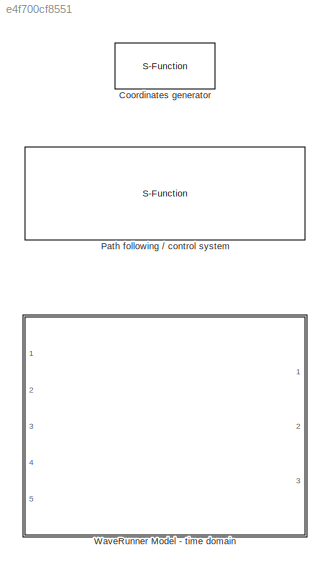
MODEL slx_e4f700cf8551
KIND library
CONFIG AbsTol = auto
CONFIG EnableMultiTasking = off
CONFIG FixedStep = auto
CONFIG MaxStep = auto
CONFIG MinStep = auto
CONFIG RelTol = 1e-3
CONFIG SampleTimeConstraint = Unconstrained
CONFIG Solver = VariableStepAuto
CONFIG SolverName = VariableStepAuto
CONFIG StartTime = 0.0
CONFIG StopTime = 10.0
BLOCK [S-Function] Coordinates generator
  EnableBusSupport = off
  FunctionName = s_coords_gen
  Parameters = steptime fname
  Ports = [0, 1]
  SFcnIsStateOwnerBlock = off
  SFunctionDeploymentMode = off
BLOCK [S-Function] Path following // control system
  EnableBusSupport = off
  FunctionName = s_path_alg
  Parameters = dt g_Kp g_Tf g_Kd g_Ki g_max g_min n_Kp n_Tf n_Kd n_Ki n_max n_min
  Ports = [4, 3]
  SFcnIsStateOwnerBlock = off
  SFunctionDeploymentMode = off
  SFunctionModules = 'path_alg'
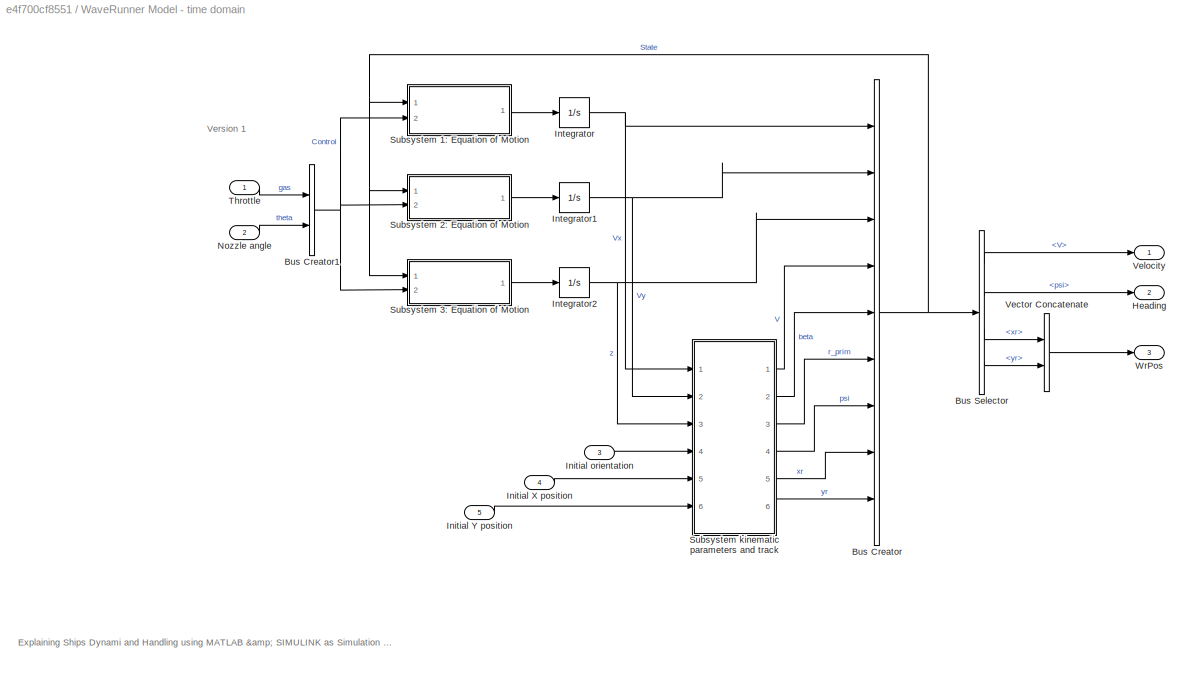
BLOCK [SubSystem] WaveRunner Model - time domain
  Ports = [5, 3]
  RequestExecContextInheritance = off
BLOCK [BusCreator] WaveRunner Model - time domain/Bus Creator
  DisplayOption = bar
  InheritFromInputs = on
  Inputs = 9
  Ports = [9, 1]
BLOCK [BusCreator] WaveRunner Model - time domain/Bus Creator1
  DisplayOption = bar
  InheritFromInputs = on
  Inputs = 2
  Ports = [2, 1]
BLOCK [BusSelector] WaveRunner Model - time domain/Bus Selector
  OutputAsBus = off
  OutputSignals = V,psi,xr,yr
  Ports = [1, 4]
BLOCK [Outport] WaveRunner Model - time domain/Heading
  IconDisplay = Port number
  Port = 2
BLOCK [Inport] WaveRunner Model - time domain/Initial X position
  IconDisplay = Port number
  Port = 4
BLOCK [Inport] WaveRunner Model - time domain/Initial Y position
  IconDisplay = Port number
  Port = 5
BLOCK [Inport] WaveRunner Model - time domain/Initial orientation
  IconDisplay = Port number
  Port = 3
BLOCK [Integrator] WaveRunner Model - time domain/Integrator
  Ports = [1, 1]
BLOCK [Integrator] WaveRunner Model - time domain/Integrator1
  Ports = [1, 1]
BLOCK [Integrator] WaveRunner Model - time domain/Integrator2
  Ports = [1, 1]
BLOCK [Inport] WaveRunner Model - time domain/Nozzle angle
  IconDisplay = Port number
  Port = 2
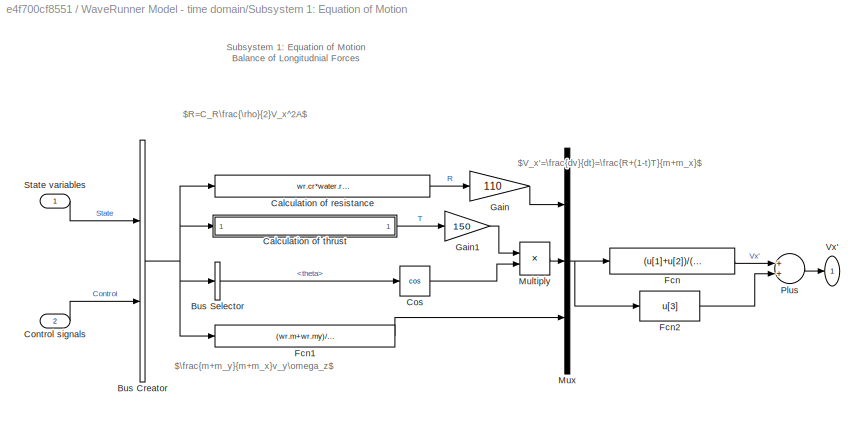
BLOCK [SubSystem] WaveRunner Model - time domain/Subsystem 1: Equation of Motion
  Ports = [2, 1]
  RequestExecContextInheritance = off
BLOCK [BusCreator] WaveRunner Model - time domain/Subsystem 1: Equation of Motion/Bus Creator
  DisplayOption = bar
  InheritFromInputs = on
  Inputs = 2
  OutDataTypeStr = Bus: slBus1
  Ports = [2, 1]
BLOCK [BusSelector] WaveRunner Model - time domain/Subsystem 1: Equation of Motion/Bus Selector
  OutputAsBus = off
  OutputSignals = Control.theta
  Ports = [1, 1]
BLOCK [Fcn] WaveRunner Model - time domain/Subsystem 1: Equation of Motion/Calculation of resistance
  Expr = wr.cr*water.rho/2*(wr.Al/(1+u[1]))*u[1]^2
BLOCK [ModelReference] WaveRunner Model - time domain/Subsystem 1: Equation of Motion/Calculation of thrust
  ModelNameDialog = calculation_of_thrust
  ModelReferenceVersion = 1.17
  Ports = [1, 1]
BLOCK [Inport] WaveRunner Model - time domain/Subsystem 1: Equation of Motion/Control signals
  IconDisplay = Port number
  Port = 2
BLOCK [Trigonometry] WaveRunner Model - time domain/Subsystem 1: Equation of Motion/Cos
  Operator = cos
  Ports = [1, 1]
BLOCK [Fcn] WaveRunner Model - time domain/Subsystem 1: Equation of Motion/Fcn
  Expr = (u[1]+u[2])/(wr.m+wr.mx)
BLOCK [Fcn] WaveRunner Model - time domain/Subsystem 1: Equation of Motion/Fcn1
  Expr = (wr.m+wr.my)/(wr.m+wr.mx)*u[2]*u[3]
BLOCK [Fcn] WaveRunner Model - time domain/Subsystem 1: Equation of Motion/Fcn2
  Expr = u[3]
BLOCK [Gain] WaveRunner Model - time domain/Subsystem 1: Equation of Motion/Gain
  Gain = 110
  OutDataTypeStr = Inherit: Inherit via internal rule
  ParamDataTypeStr = Inherit: Inherit via internal rule
  SaturateOnIntegerOverflow = off
BLOCK [Gain] WaveRunner Model - time domain/Subsystem 1: Equation of Motion/Gain1
  Gain = 150
  OutDataTypeStr = Inherit: Inherit via internal rule
  ParamDataTypeStr = Inherit: Inherit via internal rule
  SaturateOnIntegerOverflow = off
BLOCK [Product] WaveRunner Model - time domain/Subsystem 1: Equation of Motion/Multiply
  InputSameDT = off
  OutDataTypeStr = Inherit: Inherit via internal rule
  Ports = [2, 1]
  RndMeth = Floor
  SaturateOnIntegerOverflow = off
BLOCK [Mux] WaveRunner Model - time domain/Subsystem 1: Equation of Motion/Mux
  DisplayOption = bar
  Inputs = 3
  Ports = [3, 1]
BLOCK [Sum] WaveRunner Model - time domain/Subsystem 1: Equation of Motion/Plus
  InputSameDT = off
  OutDataTypeStr = Inherit: Inherit via internal rule
  Ports = [2, 1]
  SaturateOnIntegerOverflow = off
BLOCK [Inport] WaveRunner Model - time domain/Subsystem 1: Equation of Motion/State variables
  IconDisplay = Port number
BLOCK [Outport] WaveRunner Model - time domain/Subsystem 1: Equation of Motion/Vx'
  IconDisplay = Port number
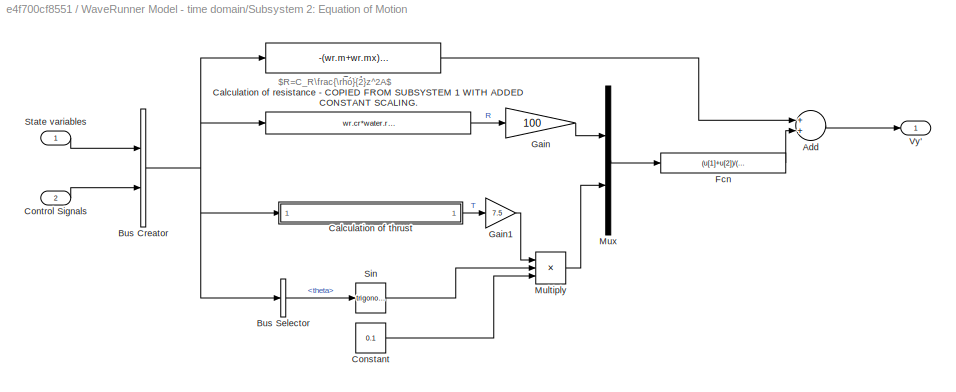
BLOCK [SubSystem] WaveRunner Model - time domain/Subsystem 2: Equation of Motion
  Ports = [2, 1]
  RequestExecContextInheritance = off
BLOCK [Sum] WaveRunner Model - time domain/Subsystem 2: Equation of Motion/Add
  InputSameDT = off
  OutDataTypeStr = Inherit: Inherit via internal rule
  Ports = [2, 1]
  SaturateOnIntegerOverflow = off
BLOCK [BusCreator] WaveRunner Model - time domain/Subsystem 2: Equation of Motion/Bus Creator
  DisplayOption = bar
  InheritFromInputs = on
  Inputs = 2
  Ports = [2, 1]
BLOCK [BusSelector] WaveRunner Model - time domain/Subsystem 2: Equation of Motion/Bus Selector
  OutputAsBus = off
  OutputSignals = Control.theta
  Ports = [1, 1]
BLOCK [Fcn] WaveRunner Model - time domain/Subsystem 2: Equation of Motion/Calculation of resistance - COPIED FROM SUBSYSTEM 1 WITH ADDED CONSTANT SCALING.
  Expr = wr.cr*water.rho/2*wr.Al*u[2]
BLOCK [ModelReference] WaveRunner Model - time domain/Subsystem 2: Equation of Motion/Calculation of thrust
  ModelNameDialog = calculation_of_thrust
  ModelReferenceVersion = 1.17
  Ports = [1, 1]
BLOCK [Constant] WaveRunner Model - time domain/Subsystem 2: Equation of Motion/Constant
  Value = 0.1
BLOCK [Inport] WaveRunner Model - time domain/Subsystem 2: Equation of Motion/Control Signals
  IconDisplay = Port number
  Port = 2
BLOCK [Fcn] WaveRunner Model - time domain/Subsystem 2: Equation of Motion/Fcn
  Expr = (u[1]+u[2])/(wr.m+wr.my)
BLOCK [Fcn] WaveRunner Model - time domain/Subsystem 2: Equation of Motion/Fcn1
  Expr = -(wr.m+wr.mx)/(wr.m+wr.my)*u[1]*u[3]
BLOCK [Gain] WaveRunner Model - time domain/Subsystem 2: Equation of Motion/Gain
  Gain = 100
  OutDataTypeStr = Inherit: Inherit via internal rule
  ParamDataTypeStr = Inherit: Inherit via internal rule
  SaturateOnIntegerOverflow = off
BLOCK [Gain] WaveRunner Model - time domain/Subsystem 2: Equation of Motion/Gain1
  Gain = 7.5
  OutDataTypeStr = Inherit: Inherit via internal rule
  ParamDataTypeStr = Inherit: Inherit via internal rule
  SaturateOnIntegerOverflow = off
BLOCK [Product] WaveRunner Model - time domain/Subsystem 2: Equation of Motion/Multiply
  InputSameDT = off
  Inputs = 3
  OutDataTypeStr = Inherit: Inherit via internal rule
  Ports = [3, 1]
  RndMeth = Floor
  SaturateOnIntegerOverflow = off
BLOCK [Mux] WaveRunner Model - time domain/Subsystem 2: Equation of Motion/Mux
  DisplayOption = bar
  Inputs = 2
  Ports = [2, 1]
BLOCK [Trigonometry] WaveRunner Model - time domain/Subsystem 2: Equation of Motion/Sin
  Ports = [1, 1]
BLOCK [Inport] WaveRunner Model - time domain/Subsystem 2: Equation of Motion/State variables
  IconDisplay = Port number
BLOCK [Outport] WaveRunner Model - time domain/Subsystem 2: Equation of Motion/Vy'
  IconDisplay = Port number
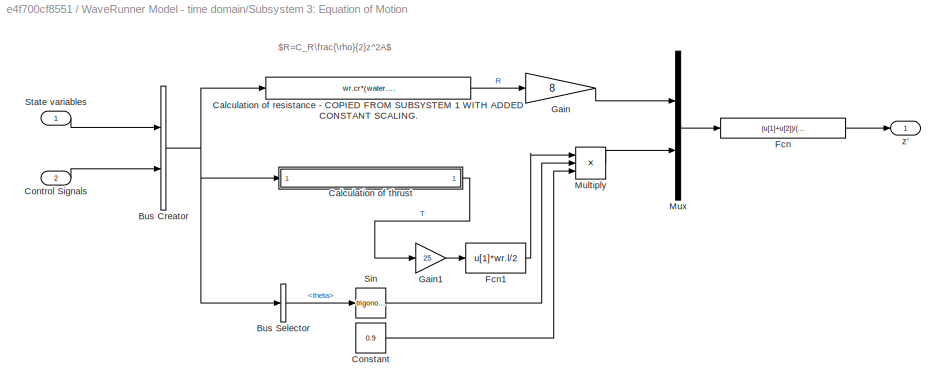
BLOCK [SubSystem] WaveRunner Model - time domain/Subsystem 3: Equation of Motion
  Ports = [2, 1]
  RequestExecContextInheritance = off
BLOCK [BusCreator] WaveRunner Model - time domain/Subsystem 3: Equation of Motion/Bus Creator
  DisplayOption = bar
  InheritFromInputs = on
  Inputs = 2
  Ports = [2, 1]
BLOCK [BusSelector] WaveRunner Model - time domain/Subsystem 3: Equation of Motion/Bus Selector
  OutputAsBus = off
  OutputSignals = Control.theta
  Ports = [1, 1]
BLOCK [Fcn] WaveRunner Model - time domain/Subsystem 3: Equation of Motion/Calculation of resistance - COPIED FROM SUBSYSTEM 1 WITH ADDED CONSTANT SCALING.
  Expr = wr.cr*(water.rho/2)*wr.Al*u[3]
BLOCK [ModelReference] WaveRunner Model - time domain/Subsystem 3: Equation of Motion/Calculation of thrust
  ModelNameDialog = calculation_of_thrust
  ModelReferenceVersion = 1.17
  Ports = [1, 1]
BLOCK [Constant] WaveRunner Model - time domain/Subsystem 3: Equation of Motion/Constant
  Value = 0.9
BLOCK [Inport] WaveRunner Model - time domain/Subsystem 3: Equation of Motion/Control Signals
  IconDisplay = Port number
  Port = 2
BLOCK [Fcn] WaveRunner Model - time domain/Subsystem 3: Equation of Motion/Fcn
  Expr = (u[1]+u[2])/(wr.I+wr.Iz)
BLOCK [Fcn] WaveRunner Model - time domain/Subsystem 3: Equation of Motion/Fcn1
  Expr = u[1]*wr.l/2
BLOCK [Gain] WaveRunner Model - time domain/Subsystem 3: Equation of Motion/Gain
  Gain = 8
  OutDataTypeStr = Inherit: Inherit via internal rule
  ParamDataTypeStr = Inherit: Inherit via internal rule
  SaturateOnIntegerOverflow = off
BLOCK [Gain] WaveRunner Model - time domain/Subsystem 3: Equation of Motion/Gain1
  Gain = 25
  OutDataTypeStr = Inherit: Inherit via internal rule
  ParamDataTypeStr = Inherit: Inherit via internal rule
  SaturateOnIntegerOverflow = off
BLOCK [Product] WaveRunner Model - time domain/Subsystem 3: Equation of Motion/Multiply
  InputSameDT = off
  Inputs = 3
  OutDataTypeStr = Inherit: Inherit via internal rule
  Ports = [3, 1]
  RndMeth = Floor
  SaturateOnIntegerOverflow = off
BLOCK [Mux] WaveRunner Model - time domain/Subsystem 3: Equation of Motion/Mux
  DisplayOption = bar
  Inputs = 2
  Ports = [2, 1]
BLOCK [Trigonometry] WaveRunner Model - time domain/Subsystem 3: Equation of Motion/Sin
  Ports = [1, 1]
BLOCK [Inport] WaveRunner Model - time domain/Subsystem 3: Equation of Motion/State variables
  IconDisplay = Port number
BLOCK [Outport] WaveRunner Model - time domain/Subsystem 3: Equation of Motion/z'
  IconDisplay = Port number
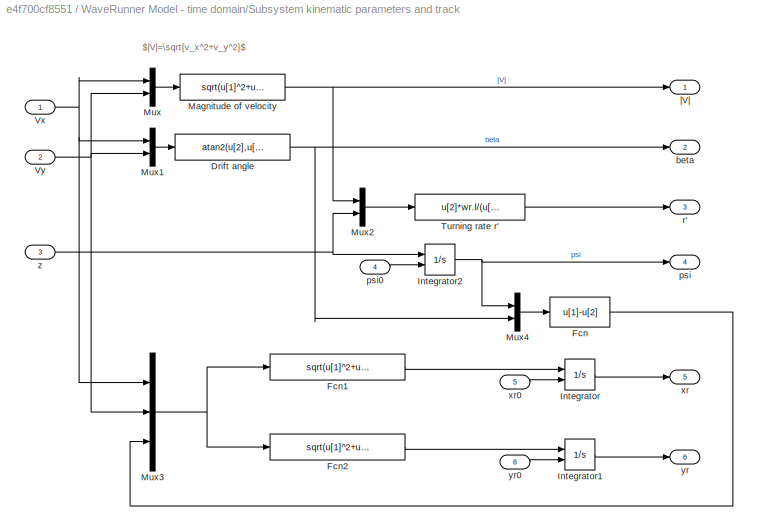
BLOCK [SubSystem] WaveRunner Model - time domain/Subsystem kinematic parameters and track
  Ports = [6, 6]
  RequestExecContextInheritance = off
BLOCK [Fcn] WaveRunner Model - time domain/Subsystem kinematic parameters and track/Drift angle
  Expr = atan2(u[2],u[1])*pi/180
BLOCK [Fcn] WaveRunner Model - time domain/Subsystem kinematic parameters and track/Fcn
  Expr = u[1]-u[2]
BLOCK [Fcn] WaveRunner Model - time domain/Subsystem kinematic parameters and track/Fcn1
  Expr = sqrt(u[1]^2+u[2]^2)*cos(u[3])
BLOCK [Fcn] WaveRunner Model - time domain/Subsystem kinematic parameters and track/Fcn2
  Expr = sqrt(u[1]^2+u[2]^2)*sin(u[3])
BLOCK [Integrator] WaveRunner Model - time domain/Subsystem kinematic parameters and track/Integrator
  InitialConditionSource = external
  Ports = [2, 1]
BLOCK [Integrator] WaveRunner Model - time domain/Subsystem kinematic parameters and track/Integrator1
  InitialConditionSource = external
  Ports = [2, 1]
BLOCK [Integrator] WaveRunner Model - time domain/Subsystem kinematic parameters and track/Integrator2
  InitialConditionSource = external
  Ports = [2, 1]
BLOCK [Fcn] WaveRunner Model - time domain/Subsystem kinematic parameters and track/Magnitude of velocity
  Expr = sqrt(u[1]^2+u[2]^2)
BLOCK [Mux] WaveRunner Model - time domain/Subsystem kinematic parameters and track/Mux
  DisplayOption = bar
  Inputs = 2
  Ports = [2, 1]
BLOCK [Mux] WaveRunner Model - time domain/Subsystem kinematic parameters and track/Mux1
  DisplayOption = bar
  Inputs = 2
  Ports = [2, 1]
BLOCK [Mux] WaveRunner Model - time domain/Subsystem kinematic parameters and track/Mux2
  DisplayOption = bar
  Inputs = 2
  Ports = [2, 1]
BLOCK [Mux] WaveRunner Model - time domain/Subsystem kinematic parameters and track/Mux3
  DisplayOption = bar
  Inputs = 3
  Ports = [3, 1]
BLOCK [Mux] WaveRunner Model - time domain/Subsystem kinematic parameters and track/Mux4
  DisplayOption = bar
  Inputs = 2
  Ports = [2, 1]
BLOCK [Fcn] WaveRunner Model - time domain/Subsystem kinematic parameters and track/Turning rate r'
  Expr = u[2]*wr.l/(u[1]+0.01)
BLOCK [Inport] WaveRunner Model - time domain/Subsystem kinematic parameters and track/Vx
  IconDisplay = Port number
BLOCK [Inport] WaveRunner Model - time domain/Subsystem kinematic parameters and track/Vy
  IconDisplay = Port number
  Port = 2
BLOCK [Outport] WaveRunner Model - time domain/Subsystem kinematic parameters and track/beta
  IconDisplay = Port number
  Port = 2
BLOCK [Outport] WaveRunner Model - time domain/Subsystem kinematic parameters and track/psi
  IconDisplay = Port number
  Port = 4
BLOCK [Inport] WaveRunner Model - time domain/Subsystem kinematic parameters and track/psi0
  IconDisplay = Port number
  Port = 4
BLOCK [Outport] WaveRunner Model - time domain/Subsystem kinematic parameters and track/r'
  IconDisplay = Port number
  Port = 3
BLOCK [Outport] WaveRunner Model - time domain/Subsystem kinematic parameters and track/xr
  IconDisplay = Port number
  Port = 5
BLOCK [Inport] WaveRunner Model - time domain/Subsystem kinematic parameters and track/xr0
  IconDisplay = Port number
  Port = 5
BLOCK [Outport] WaveRunner Model - time domain/Subsystem kinematic parameters and track/yr
  IconDisplay = Port number
  Port = 6
BLOCK [Inport] WaveRunner Model - time domain/Subsystem kinematic parameters and track/yr0
  IconDisplay = Port number
  Port = 6
BLOCK [Inport] WaveRunner Model - time domain/Subsystem kinematic parameters and track/z
  IconDisplay = Port number
  Port = 3
BLOCK [Outport] WaveRunner Model - time domain/Subsystem kinematic parameters and track/|V|
  IconDisplay = Port number
BLOCK [Inport] WaveRunner Model - time domain/Throttle
  IconDisplay = Port number
BLOCK [Concatenate] WaveRunner Model - time domain/Vector Concatenate
  Ports = [2, 1]
BLOCK [Outport] WaveRunner Model - time domain/Velocity
  IconDisplay = Port number
BLOCK [Outport] WaveRunner Model - time domain/WrPos
  IconDisplay = Port number
  Port = 3
ANNOTATION WaveRunner Model - time domain: Explaining Ships Dynami and Handling using MATLAB & SIMULINK as Simulation Tool in Teaching Maritime Students
ANNOTATION WaveRunner Model - time domain: Version 1
ANNOTATION WaveRunner Model - time domain/Subsystem 1: Equation of Motion: Subsystem 1: Equation of Motion Balance of Longitudnial Forces
ANNOTATION WaveRunner Model - time domain/Subsystem 1: Equation of Motion: $R=C_R\frac{\rho}{2}V_x^2A$
ANNOTATION WaveRunner Model - time domain/Subsystem 1: Equation of Motion: $V_x'=\frac{dv}{dt}=\frac{R+(1-t)T}{m+m_x}$
ANNOTATION WaveRunner Model - time domain/Subsystem 1: Equation of Motion: $\frac{m+m_y}{m+m_x}v_y\omega_z$
ANNOTATION WaveRunner Model - time domain/Subsystem 2: Equation of Motion: $R=C_R\frac{\rho}{2}z^2A$
ANNOTATION WaveRunner Model - time domain/Subsystem 3: Equation of Motion: $R=C_R\frac{\rho}{2}z^2A$
ANNOTATION WaveRunner Model - time domain/Subsystem kinematic parameters and track: $|V|=\sqrt{v_x^2+v_y^2}$
NET WaveRunner Model - time domain/Bus Creator1:1 -> WaveRunner Model - time domain/Subsystem 1: Equation of Motion:2, WaveRunner Model - time domain/Subsystem 2: Equation of Motion:2, WaveRunner Model - time domain/Subsystem 3: Equation of Motion:2
NET WaveRunner Model - time domain/Bus Creator:1 -> WaveRunner Model - time domain/Bus Selector:1, WaveRunner Model - time domain/Subsystem 1: Equation of Motion:1, WaveRunner Model - time domain/Subsystem 2: Equation of Motion:1, WaveRunner Model - time domain/Subsystem 3: Equation of Motion:1
LINE WaveRunner Model - time domain/Bus Selector:1 -> WaveRunner Model - time domain/Velocity:1
LINE WaveRunner Model - time domain/Bus Selector:2 -> WaveRunner Model - time domain/Heading:1
LINE WaveRunner Model - time domain/Bus Selector:3 -> WaveRunner Model - time domain/Vector Concatenate:1
LINE WaveRunner Model - time domain/Bus Selector:4 -> WaveRunner Model - time domain/Vector Concatenate:2
LINE WaveRunner Model - time domain/Initial X position:1 -> WaveRunner Model - time domain/Subsystem kinematic parameters and track:5
LINE WaveRunner Model - time domain/Initial Y position:1 -> WaveRunner Model - time domain/Subsystem kinematic parameters and track:6
LINE WaveRunner Model - time domain/Initial orientation:1 -> WaveRunner Model - time domain/Subsystem kinematic parameters and track:4
NET WaveRunner Model - time domain/Integrator1:1 -> WaveRunner Model - time domain/Bus Creator:2, WaveRunner Model - time domain/Subsystem kinematic parameters and track:2
NET WaveRunner Model - time domain/Integrator2:1 -> WaveRunner Model - time domain/Bus Creator:3, WaveRunner Model - time domain/Subsystem kinematic parameters and track:3
NET WaveRunner Model - time domain/Integrator:1 -> WaveRunner Model - time domain/Bus Creator:1, WaveRunner Model - time domain/Subsystem kinematic parameters and track:1
LINE WaveRunner Model - time domain/Nozzle angle:1 -> WaveRunner Model - time domain/Bus Creator1:2
NET WaveRunner Model - time domain/Subsystem 1: Equation of Motion/Bus Creator:1 -> WaveRunner Model - time domain/Subsystem 1: Equation of Motion/Bus Selector:1, WaveRunner Model - time domain/Subsystem 1: Equation of Motion/Calculation of resistance:1, WaveRunner Model - time domain/Subsystem 1: Equation of Motion/Calculation of thrust:1, WaveRunner Model - time domain/Subsystem 1: Equation of Motion/Fcn1:1
LINE WaveRunner Model - time domain/Subsystem 1: Equation of Motion/Bus Selector:1 -> WaveRunner Model - time domain/Subsystem 1: Equation of Motion/Cos:1
LINE WaveRunner Model - time domain/Subsystem 1: Equation of Motion/Calculation of resistance:1 -> WaveRunner Model - time domain/Subsystem 1: Equation of Motion/Gain:1
LINE WaveRunner Model - time domain/Subsystem 1: Equation of Motion/Calculation of thrust:1 -> WaveRunner Model - time domain/Subsystem 1: Equation of Motion/Gain1:1
LINE WaveRunner Model - time domain/Subsystem 1: Equation of Motion/Control signals:1 -> WaveRunner Model - time domain/Subsystem 1: Equation of Motion/Bus Creator:2
LINE WaveRunner Model - time domain/Subsystem 1: Equation of Motion/Cos:1 -> WaveRunner Model - time domain/Subsystem 1: Equation of Motion/Multiply:2
LINE WaveRunner Model - time domain/Subsystem 1: Equation of Motion/Fcn1:1 -> WaveRunner Model - time domain/Subsystem 1: Equation of Motion/Mux:3
LINE WaveRunner Model - time domain/Subsystem 1: Equation of Motion/Fcn2:1 -> WaveRunner Model - time domain/Subsystem 1: Equation of Motion/Plus:2
LINE WaveRunner Model - time domain/Subsystem 1: Equation of Motion/Fcn:1 -> WaveRunner Model - time domain/Subsystem 1: Equation of Motion/Plus:1
LINE WaveRunner Model - time domain/Subsystem 1: Equation of Motion/Gain1:1 -> WaveRunner Model - time domain/Subsystem 1: Equation of Motion/Multiply:1
LINE WaveRunner Model - time domain/Subsystem 1: Equation of Motion/Gain:1 -> WaveRunner Model - time domain/Subsystem 1: Equation of Motion/Mux:1
LINE WaveRunner Model - time domain/Subsystem 1: Equation of Motion/Multiply:1 -> WaveRunner Model - time domain/Subsystem 1: Equation of Motion/Mux:2
NET WaveRunner Model - time domain/Subsystem 1: Equation of Motion/Mux:1 -> WaveRunner Model - time domain/Subsystem 1: Equation of Motion/Fcn2:1, WaveRunner Model - time domain/Subsystem 1: Equation of Motion/Fcn:1
LINE WaveRunner Model - time domain/Subsystem 1: Equation of Motion/Plus:1 -> WaveRunner Model - time domain/Subsystem 1: Equation of Motion/Vx':1
LINE WaveRunner Model - time domain/Subsystem 1: Equation of Motion/State variables:1 -> WaveRunner Model - time domain/Subsystem 1: Equation of Motion/Bus Creator:1
LINE WaveRunner Model - time domain/Subsystem 1: Equation of Motion:1 -> WaveRunner Model - time domain/Integrator:1
LINE WaveRunner Model - time domain/Subsystem 2: Equation of Motion/Add:1 -> WaveRunner Model - time domain/Subsystem 2: Equation of Motion/Vy':1
NET WaveRunner Model - time domain/Subsystem 2: Equation of Motion/Bus Creator:1 -> WaveRunner Model - time domain/Subsystem 2: Equation of Motion/Bus Selector:1, WaveRunner Model - time domain/Subsystem 2: Equation of Motion/Calculation of resistance - COPIED FROM SUBSYSTEM 1 WITH ADDED CONSTANT SCALING.:1, WaveRunner Model - time domain/Subsystem 2: Equation of Motion/Calculation of thrust:1, WaveRunner Model - time domain/Subsystem 2: Equation of Motion/Fcn1:1
LINE WaveRunner Model - time domain/Subsystem 2: Equation of Motion/Bus Selector:1 -> WaveRunner Model - time domain/Subsystem 2: Equation of Motion/Sin:1
LINE WaveRunner Model - time domain/Subsystem 2: Equation of Motion/Calculation of resistance - COPIED FROM SUBSYSTEM 1 WITH ADDED CONSTANT SCALING.:1 -> WaveRunner Model - time domain/Subsystem 2: Equation of Motion/Gain:1
LINE WaveRunner Model - time domain/Subsystem 2: Equation of Motion/Calculation of thrust:1 -> WaveRunner Model - time domain/Subsystem 2: Equation of Motion/Gain1:1
LINE WaveRunner Model - time domain/Subsystem 2: Equation of Motion/Constant:1 -> WaveRunner Model - time domain/Subsystem 2: Equation of Motion/Multiply:3
LINE WaveRunner Model - time domain/Subsystem 2: Equation of Motion/Control Signals:1 -> WaveRunner Model - time domain/Subsystem 2: Equation of Motion/Bus Creator:2
LINE WaveRunner Model - time domain/Subsystem 2: Equation of Motion/Fcn1:1 -> WaveRunner Model - time domain/Subsystem 2: Equation of Motion/Add:1
LINE WaveRunner Model - time domain/Subsystem 2: Equation of Motion/Fcn:1 -> WaveRunner Model - time domain/Subsystem 2: Equation of Motion/Add:2
LINE WaveRunner Model - time domain/Subsystem 2: Equation of Motion/Gain1:1 -> WaveRunner Model - time domain/Subsystem 2: Equation of Motion/Multiply:1
LINE WaveRunner Model - time domain/Subsystem 2: Equation of Motion/Gain:1 -> WaveRunner Model - time domain/Subsystem 2: Equation of Motion/Mux:1
LINE WaveRunner Model - time domain/Subsystem 2: Equation of Motion/Multiply:1 -> WaveRunner Model - time domain/Subsystem 2: Equation of Motion/Mux:2
LINE WaveRunner Model - time domain/Subsystem 2: Equation of Motion/Mux:1 -> WaveRunner Model - time domain/Subsystem 2: Equation of Motion/Fcn:1
LINE WaveRunner Model - time domain/Subsystem 2: Equation of Motion/Sin:1 -> WaveRunner Model - time domain/Subsystem 2: Equation of Motion/Multiply:2
LINE WaveRunner Model - time domain/Subsystem 2: Equation of Motion/State variables:1 -> WaveRunner Model - time domain/Subsystem 2: Equation of Motion/Bus Creator:1
LINE WaveRunner Model - time domain/Subsystem 2: Equation of Motion:1 -> WaveRunner Model - time domain/Integrator1:1
NET WaveRunner Model - time domain/Subsystem 3: Equation of Motion/Bus Creator:1 -> WaveRunner Model - time domain/Subsystem 3: Equation of Motion/Bus Selector:1, WaveRunner Model - time domain/Subsystem 3: Equation of Motion/Calculation of resistance - COPIED FROM SUBSYSTEM 1 WITH ADDED CONSTANT SCALING.:1, WaveRunner Model - time domain/Subsystem 3: Equation of Motion/Calculation of thrust:1
LINE WaveRunner Model - time domain/Subsystem 3: Equation of Motion/Bus Selector:1 -> WaveRunner Model - time domain/Subsystem 3: Equation of Motion/Sin:1
LINE WaveRunner Model - time domain/Subsystem 3: Equation of Motion/Calculation of resistance - COPIED FROM SUBSYSTEM 1 WITH ADDED CONSTANT SCALING.:1 -> WaveRunner Model - time domain/Subsystem 3: Equation of Motion/Gain:1
LINE WaveRunner Model - time domain/Subsystem 3: Equation of Motion/Calculation of thrust:1 -> WaveRunner Model - time domain/Subsystem 3: Equation of Motion/Gain1:1
LINE WaveRunner Model - time domain/Subsystem 3: Equation of Motion/Constant:1 -> WaveRunner Model - time domain/Subsystem 3: Equation of Motion/Multiply:3
LINE WaveRunner Model - time domain/Subsystem 3: Equation of Motion/Control Signals:1 -> WaveRunner Model - time domain/Subsystem 3: Equation of Motion/Bus Creator:2
LINE WaveRunner Model - time domain/Subsystem 3: Equation of Motion/Fcn1:1 -> WaveRunner Model - time domain/Subsystem 3: Equation of Motion/Multiply:1
LINE WaveRunner Model - time domain/Subsystem 3: Equation of Motion/Fcn:1 -> WaveRunner Model - time domain/Subsystem 3: Equation of Motion/z':1
LINE WaveRunner Model - time domain/Subsystem 3: Equation of Motion/Gain1:1 -> WaveRunner Model - time domain/Subsystem 3: Equation of Motion/Fcn1:1
LINE WaveRunner Model - time domain/Subsystem 3: Equation of Motion/Gain:1 -> WaveRunner Model - time domain/Subsystem 3: Equation of Motion/Mux:1
LINE WaveRunner Model - time domain/Subsystem 3: Equation of Motion/Multiply:1 -> WaveRunner Model - time domain/Subsystem 3: Equation of Motion/Mux:2
LINE WaveRunner Model - time domain/Subsystem 3: Equation of Motion/Mux:1 -> WaveRunner Model - time domain/Subsystem 3: Equation of Motion/Fcn:1
LINE WaveRunner Model - time domain/Subsystem 3: Equation of Motion/Sin:1 -> WaveRunner Model - time domain/Subsystem 3: Equation of Motion/Multiply:2
LINE WaveRunner Model - time domain/Subsystem 3: Equation of Motion/State variables:1 -> WaveRunner Model - time domain/Subsystem 3: Equation of Motion/Bus Creator:1
LINE WaveRunner Model - time domain/Subsystem 3: Equation of Motion:1 -> WaveRunner Model - time domain/Integrator2:1
NET WaveRunner Model - time domain/Subsystem kinematic parameters and track/Drift angle:1 -> WaveRunner Model - time domain/Subsystem kinematic parameters and track/Mux4:2, WaveRunner Model - time domain/Subsystem kinematic parameters and track/beta:1
LINE WaveRunner Model - time domain/Subsystem kinematic parameters and track/Fcn1:1 -> WaveRunner Model - time domain/Subsystem kinematic parameters and track/Integrator:1
LINE WaveRunner Model - time domain/Subsystem kinematic parameters and track/Fcn2:1 -> WaveRunner Model - time domain/Subsystem kinematic parameters and track/Integrator1:1
LINE WaveRunner Model - time domain/Subsystem kinematic parameters and track/Fcn:1 -> WaveRunner Model - time domain/Subsystem kinematic parameters and track/Mux3:3
LINE WaveRunner Model - time domain/Subsystem kinematic parameters and track/Integrator1:1 -> WaveRunner Model - time domain/Subsystem kinematic parameters and track/yr:1
NET WaveRunner Model - time domain/Subsystem kinematic parameters and track/Integrator2:1 -> WaveRunner Model - time domain/Subsystem kinematic parameters and track/Mux4:1, WaveRunner Model - time domain/Subsystem kinematic parameters and track/psi:1
LINE WaveRunner Model - time domain/Subsystem kinematic parameters and track/Integrator:1 -> WaveRunner Model - time domain/Subsystem kinematic parameters and track/xr:1
NET WaveRunner Model - time domain/Subsystem kinematic parameters and track/Magnitude of velocity:1 -> WaveRunner Model - time domain/Subsystem kinematic parameters and track/Mux2:1, WaveRunner Model - time domain/Subsystem kinematic parameters and track/|V|:1
LINE WaveRunner Model - time domain/Subsystem kinematic parameters and track/Mux1:1 -> WaveRunner Model - time domain/Subsystem kinematic parameters and track/Drift angle:1
LINE WaveRunner Model - time domain/Subsystem kinematic parameters and track/Mux2:1 -> WaveRunner Model - time domain/Subsystem kinematic parameters and track/Turning rate r':1
NET WaveRunner Model - time domain/Subsystem kinematic parameters and track/Mux3:1 -> WaveRunner Model - time domain/Subsystem kinematic parameters and track/Fcn1:1, WaveRunner Model - time domain/Subsystem kinematic parameters and track/Fcn2:1
LINE WaveRunner Model - time domain/Subsystem kinematic parameters and track/Mux4:1 -> WaveRunner Model - time domain/Subsystem kinematic parameters and track/Fcn:1
LINE WaveRunner Model - time domain/Subsystem kinematic parameters and track/Mux:1 -> WaveRunner Model - time domain/Subsystem kinematic parameters and track/Magnitude of velocity:1
LINE WaveRunner Model - time domain/Subsystem kinematic parameters and track/Turning rate r':1 -> WaveRunner Model - time domain/Subsystem kinematic parameters and track/r':1
NET WaveRunner Model - time domain/Subsystem kinematic parameters and track/Vx:1 -> WaveRunner Model - time domain/Subsystem kinematic parameters and track/Mux1:1, WaveRunner Model - time domain/Subsystem kinematic parameters and track/Mux3:1, WaveRunner Model - time domain/Subsystem kinematic parameters and track/Mux:1
NET WaveRunner Model - time domain/Subsystem kinematic parameters and track/Vy:1 -> WaveRunner Model - time domain/Subsystem kinematic parameters and track/Mux1:2, WaveRunner Model - time domain/Subsystem kinematic parameters and track/Mux3:2, WaveRunner Model - time domain/Subsystem kinematic parameters and track/Mux:2
LINE WaveRunner Model - time domain/Subsystem kinematic parameters and track/psi0:1 -> WaveRunner Model - time domain/Subsystem kinematic parameters and track/Integrator2:2
LINE WaveRunner Model - time domain/Subsystem kinematic parameters and track/xr0:1 -> WaveRunner Model - time domain/Subsystem kinematic parameters and track/Integrator:2
LINE WaveRunner Model - time domain/Subsystem kinematic parameters and track/yr0:1 -> WaveRunner Model - time domain/Subsystem kinematic parameters and track/Integrator1:2
NET WaveRunner Model - time domain/Subsystem kinematic parameters and track/z:1 -> WaveRunner Model - time domain/Subsystem kinematic parameters and track/Integrator2:1, WaveRunner Model - time domain/Subsystem kinematic parameters and track/Mux2:2
LINE WaveRunner Model - time domain/Subsystem kinematic parameters and track:1 -> WaveRunner Model - time domain/Bus Creator:4
LINE WaveRunner Model - time domain/Subsystem kinematic parameters and track:2 -> WaveRunner Model - time domain/Bus Creator:5
LINE WaveRunner Model - time domain/Subsystem kinematic parameters and track:3 -> WaveRunner Model - time domain/Bus Creator:6
LINE WaveRunner Model - time domain/Subsystem kinematic parameters and track:4 -> WaveRunner Model - time domain/Bus Creator:7
LINE WaveRunner Model - time domain/Subsystem kinematic parameters and track:5 -> WaveRunner Model - time domain/Bus Creator:8
LINE WaveRunner Model - time domain/Subsystem kinematic parameters and track:6 -> WaveRunner Model - time domain/Bus Creator:9
LINE WaveRunner Model - time domain/Throttle:1 -> WaveRunner Model - time domain/Bus Creator1:1
LINE WaveRunner Model - time domain/Vector Concatenate:1 -> WaveRunner Model - time domain/WrPos:1
note: NET lines group one-source signal fan-out (src -> all destinations, sorted); 1:1 wires keep LINE
